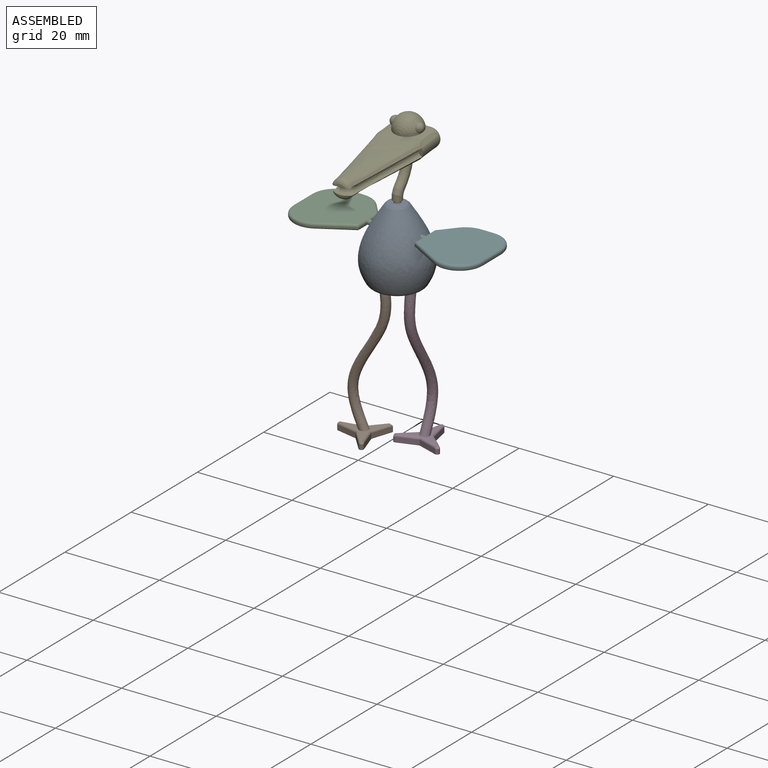
[diagram: assembled view]
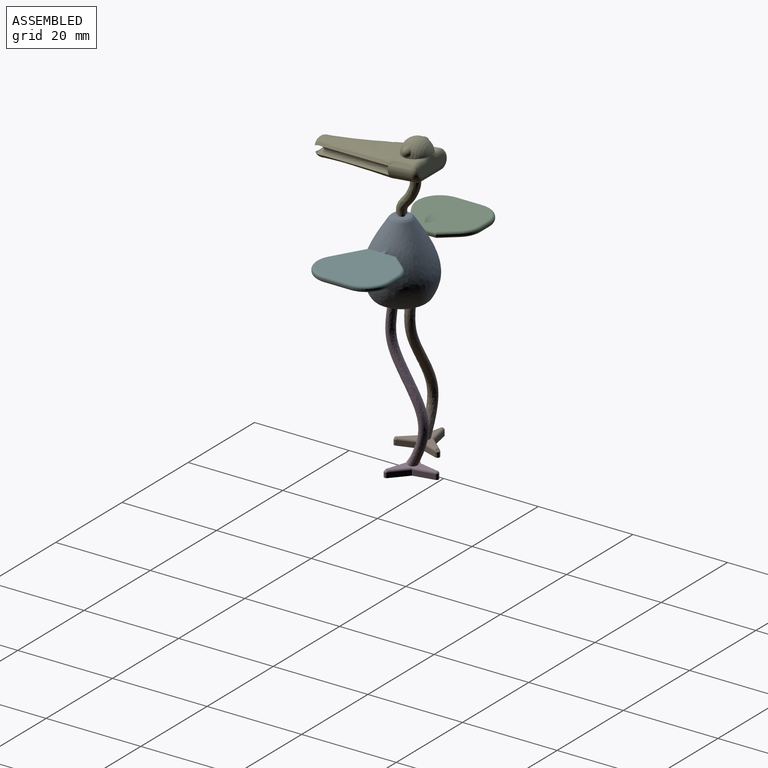
[diagram: assembled view, second angle]
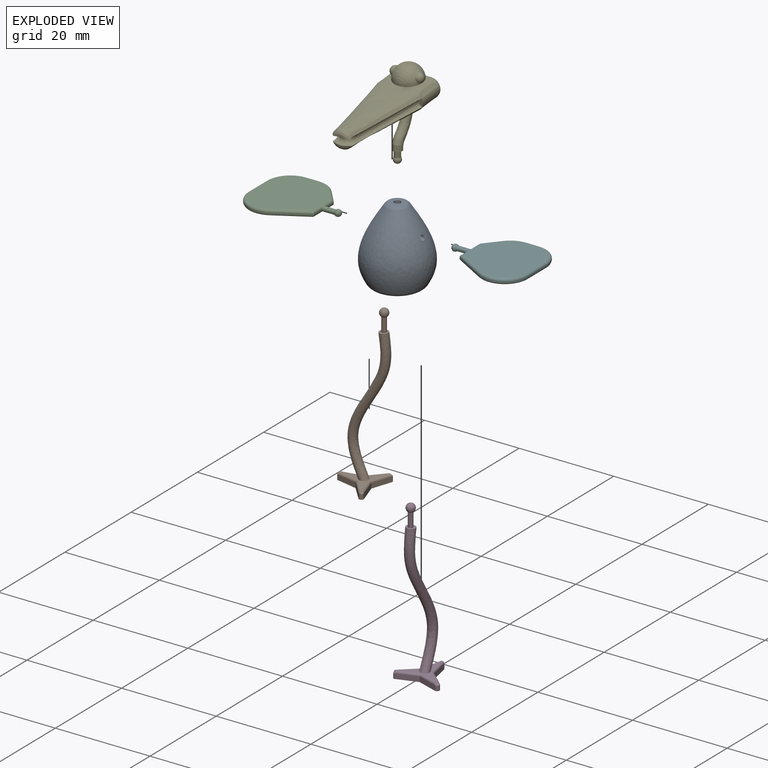
[diagram: exploded view]
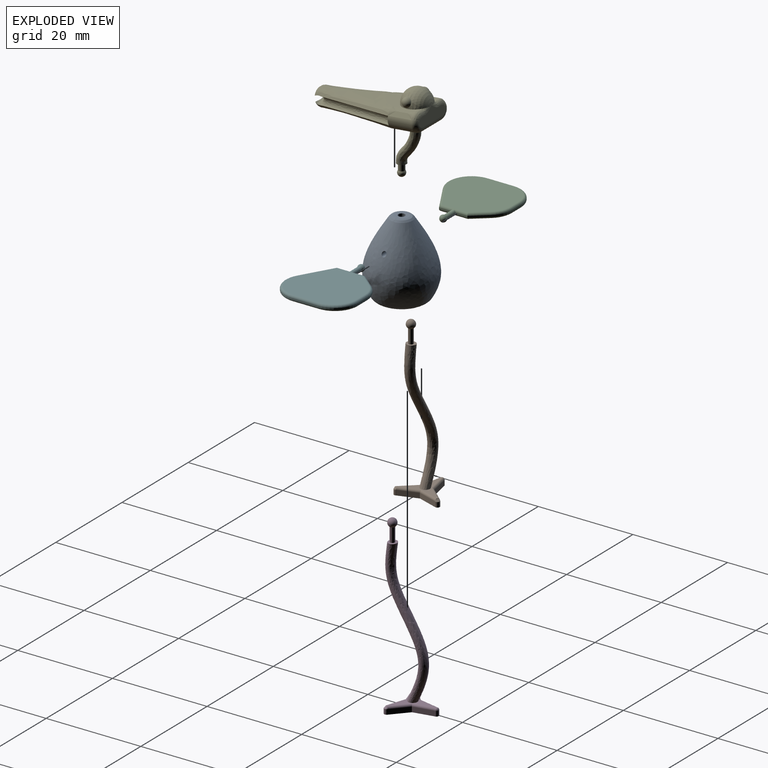
[diagram: exploded view, second angle]
ASSEMBLY  parts=6 mates=5
PART A: 15 faces, bbox 13.7x13.6x16 mm
  f0: bspline ~14.52x13.65mm, area 539mm2, adj f3,f4,f9,f11
  f1: plane 7.7x7.69mm, normal (0,0,-1), area 43.4mm2, adj f4,f5,f7
  f2: plane 2.93x2.93mm, normal (0,0,1), area 5.2mm2, adj f3,f13
  f3: bspline ~4.6x4.6mm, area 11.9mm2, adj f0,f2
  f4: bspline ~11.2x11.2mm, area 64.3mm2, adj f0,f1
  f5: cylinder r=0.7mm len=2.83mm, axis (0,0,1), area 12.4mm2, adj f1,f6
  f6: sphere r=1.2mm, area 16.4mm2, adj f5
  f7: cylinder r=0.7mm len=2.83mm, axis (0,0,1), area 12.4mm2, adj f1,f8
  f8: sphere r=1.2mm, area 16.4mm2, adj f7
  f9: cylinder r=0.5mm len=1.94mm, axis (1,0,0), area 5.3mm2, adj f0,f10
  f10: sphere r=0.88mm, area 9mm2, adj f9
  f11: cylinder r=0.5mm len=1.94mm, axis (-1,0,0), area 5.3mm2, adj f0,f12
  f12: sphere r=0.88mm, area 9mm2, adj f11
  f13: cylinder r=0.7mm len=1.4mm, axis (0,0,-1), area 3.5mm2, adj f2,f14
  f14: sphere r=1mm, area 10.8mm2, adj f13
PART B: 24 faces, bbox 11.4x9.9x35.6 mm
  f0: cylinder r=0.5mm len=1.05mm, axis (0,0,-1), area 1.6mm2, adj f1,f8,f10,f16
  f1: plane 4.21x1.05mm, normal (-0.2,-0.98,0), area 4.5mm2, adj f0,f2,f10,f14
  f2: plane 3.38x3.02mm, normal (-0.75,-0.67,0), area 4.8mm2, adj f1,f3,f10,f12
  f3: cylinder r=0.5mm len=1.05mm, axis (0,0,-1), area 1.4mm2, adj f2,f4,f10,f11
  f4: plane 4.08x1.35mm, normal (0.95,0.31,0), area 4.5mm2, adj f3,f5,f10,f13
  f5: plane 4.08x1.35mm, normal (0.95,-0.31,0), area 4.5mm2, adj f4,f6,f10,f15
  f6: cylinder r=0.5mm len=1.05mm, axis (0,0,-1), area 1.6mm2, adj f5,f7,f10,f17
  f7: plane 3.21x2.86mm, normal (-0.75,0.66,0), area 4.5mm2, adj f6,f8,f10,f19
  f8: plane 4.21x1.05mm, normal (-0.2,0.98,0), area 4.5mm2, adj f0,f7,f10,f18
  f9: plane 9.04x7.88mm, normal (0,0,1), area 11.8mm2, adj f11,f12,f13,f14,f15,f16,f17,f18
  f10: plane 9.66x8.5mm, normal (0,0,-1), area 28mm2, adj f0,f1,f2,f3,f4,f5,f6,f7
  f11: torus R=0.05mm, axis (0,0,1), area 0.6mm2, adj f3,f9,f12,f13
  f12: cylinder r=0.45mm len=3.79mm, axis (-0.67,0.75,0), area 3.2mm2, adj f2,f9,f11,f14
  f13: cylinder r=0.45mm len=4.43mm, axis (0.31,-0.95,0), area 3.1mm2, adj f4,f9,f11,f15
  f14: cylinder r=0.45mm len=4.52mm, axis (-0.98,0.2,0), area 3.1mm2, adj f1,f9,f12,f16
  f15: cylinder r=0.45mm len=4.43mm, axis (-0.31,-0.95,0), area 3.1mm2, adj f5,f9,f13,f17
  f16: torus R=0.05mm, axis (0,0,1), area 0.8mm2, adj f0,f9,f14,f18
  f17: torus R=0.05mm, axis (0,0,1), area 0.8mm2, adj f6,f9,f15,f19
  f18: cylinder r=0.45mm len=4.52mm, axis (0.98,0.2,0), area 3.1mm2, adj f8,f9,f16,f19
  f19: cylinder r=0.45mm len=3.68mm, axis (0.66,0.75,0), area 3.1mm2, adj f7,f9,f17,f18
  f20: bspline ~30.28x9mm, area 187.4mm2, adj f9,f21
  f21: plane 2x1.83mm, normal (0,0,1), area 2.1mm2, adj f20,f22
  f22: cylinder r=0.5mm len=2.95mm, axis (0,0,-1), area 9.3mm2, adj f21,f23
  f23: sphere r=0.9mm, area 9.3mm2, adj f22
PART C: 29 faces, bbox 18.3x16.4x1.4 mm
  f0: cylinder r=0.5mm len=2.71mm, axis (-1,0,0), area 8.1mm2, adj f1,f2,f3,f11,f28
  f1: plane 2.51x0.2mm, normal (1,0,0), area 0.5mm2, adj f0,f2,f3,f10
  f2: cylinder r=0.5mm len=6mm, axis (0,1,0), area 4.3mm2, adj f0,f1,f11,f13,f17,f20
  f3: cylinder r=0.5mm len=6mm, axis (0,-1,0), area 4.3mm2, adj f0,f1,f11,f12,f24,f27
  f4: plane 3.21x2.7mm, normal (0.77,0.64,0), area 0.8mm2, adj f5,f11,f17,f24
  f5: cylinder r=5mm len=3.83mm, axis (0,0,-1), area 0.9mm2, adj f4,f6,f15,f22
  f6: plane 2.67x0.2mm, normal (0,1,0), area 0.5mm2, adj f5,f7,f14,f21
  f7: cylinder r=5mm len=5mm, axis (0,0,-1), area 1.6mm2, adj f6,f8,f16,f23
  f8: plane 5.54x0.2mm, normal (-1,0,0), area 1.1mm2, adj f7,f9,f18,f25
  f9: cylinder r=5mm len=7.5mm, axis (0,0,-1), area 2.1mm2, adj f8,f10,f19,f26
  f10: plane 6.7x3.87mm, normal (0.5,-0.87,0), area 1.5mm2, adj f1,f9,f20,f27
  f11: plane 2.51x0.2mm, normal (1,0,0), area 0.5mm2, adj f0,f2,f3,f4
  f12: plane 14.54x13.2mm, normal (0,0,1), area 157mm2, adj f3,f21,f22,f23,f24,f25,f26,f27
  f13: plane 14.54x13.2mm, normal (0,0,-1), area 157mm2, adj f2,f14,f15,f16,f17,f18,f19,f20
  f14: cylinder r=0.5mm len=2.67mm, axis (-1,0,0), area 2.1mm2, adj f6,f13,f15,f16
  f15: torus R=4.5mm, axis (0,0,1), area 3.3mm2, adj f5,f13,f14,f17
  f16: torus R=4.5mm, axis (0,0,1), area 5.9mm2, adj f7,f13,f14,f18
  f17: cylinder r=0.5mm len=3.54mm, axis (-0.64,0.77,0), area 3.2mm2, adj f2,f4,f13,f15
  f18: cylinder r=0.5mm len=5.54mm, axis (0,-1,0), area 4.3mm2, adj f8,f13,f16,f19
  f19: torus R=4.5mm, axis (0,0,1), area 7.9mm2, adj f9,f13,f18,f20
  f20: cylinder r=0.5mm len=6.95mm, axis (0.87,0.5,0), area 6mm2, adj f2,f10,f13,f19
  f21: cylinder r=0.5mm len=2.67mm, axis (1,0,0), area 2.1mm2, adj f6,f12,f22,f23
  f22: torus R=4.5mm, axis (0,0,1), area 3.3mm2, adj f5,f12,f21,f24
  f23: torus R=4.5mm, axis (0,0,1), area 5.9mm2, adj f7,f12,f21,f25
  f24: cylinder r=0.5mm len=3.54mm, axis (0.64,-0.77,0), area 3.2mm2, adj f3,f4,f12,f22
  f25: cylinder r=0.5mm len=5.54mm, axis (0,1,0), area 4.3mm2, adj f8,f12,f23,f26
  f26: torus R=4.5mm, axis (0,0,1), area 7.9mm2, adj f9,f12,f25,f27
  f27: cylinder r=0.5mm len=6.95mm, axis (-0.87,-0.5,0), area 6mm2, adj f3,f10,f12,f26
  f28: sphere r=0.7mm, area 5.2mm2, adj f0
PART D: same geometry as B
PART E: 43 faces, bbox 10.8x24.6x18 mm
  f0: cylinder r=0.65mm len=1.46mm, axis (0,0.1,-1), area 5.4mm2, adj f40,f42
  f1: sphere r=3mm, area 50.2mm2, adj f2,f3,f22,f23,f26,f27,f28,f31
  f2: plane 2x0.76mm, normal (0,0,-1), area 0.5mm2, adj f1,f21,f29
  f3: plane 2x0.76mm, normal (0,0,-1), area 0.5mm2, adj f1,f24,f33
  f4: plane 1.52x0.25mm, normal (0,-1,0), area 0.2mm2, adj f9,f11
  f5: bspline ~17.15x9.6mm, area 126.3mm2, adj f9,f10,f11,f12,f16,f17,f18,f19
  f6: bspline ~4.12x1.78mm, area 5.8mm2, adj f7,f8,f11
  f7: plane 1.52x0.25mm, normal (0,-1,0), area 0.2mm2, adj f6,f11
  f8: bspline ~17.15x9.6mm, area 126.2mm2, adj f6,f10,f11,f12,f21,f22,f23,f24
  f9: bspline ~3.95x1.64mm, area 5.8mm2, adj f4,f5,f11
  f10: bspline ~15.55x4.33mm, area 36mm2, adj f5,f8,f11,f13
  f11: bspline ~6.21x2.98mm, area 19.6mm2, adj f4,f5,f6,f7,f8,f9,f10,f12
  f12: bspline ~16.12x4.24mm, area 35.9mm2, adj f5,f8,f11,f14
  f13: plane 1.91x1.05mm, normal (0,-1,0), area 1.1mm2, adj f10,f15
  f14: plane 2.21x1.35mm, normal (0,-1,0), area 1.2mm2, adj f12,f20
  f15: cylinder r=2mm len=5mm, axis (0,-1,0), area 9.1mm2, adj f13,f16,f24,f37
  f16: extruded ~5x1.8mm, area 11.2mm2, adj f5,f15,f17,f39
  f17: plane 5.28x3.28mm, normal (0,0,1), area 13.4mm2, adj f5,f16,f18,f38,f41
  f18: plane 5.28x3.28mm, normal (0,0,1), area 13.4mm2, adj f5,f17,f19,f36,f41
  f19: extruded ~5x1.8mm, area 11.2mm2, adj f5,f18,f20,f34
  f20: cylinder r=2mm len=5mm, axis (0,-1,0), area 9.1mm2, adj f14,f19,f21,f32
  f21: extruded ~5x1.8mm, area 11.2mm2, adj f2,f8,f20,f22,f30
  f22: plane 3.01x3.01mm, normal (0,0,-1), area 1.9mm2, adj f1,f8,f21
  f23: plane 3.01x3.01mm, normal (0,0,-1), area 1.9mm2, adj f1,f8,f24
  f24: extruded ~5x1.8mm, area 11.2mm2, adj f3,f8,f15,f23,f35
  f25: plane 8x3mm, normal (0,1,0), area 16.8mm2, adj f28,f29,f30,f31,f32,f33,f34,f35
  f26: sphere r=1mm, area 5.5mm2, adj f1
  f27: sphere r=1mm, area 5.5mm2, adj f1
  f28: bspline ~2.56x1.17mm, area 1.1mm2, adj f1,f25,f29
  f29: cylinder r=1mm len=1mm, axis (1,0,0), area 1.2mm2, adj f2,f25,f28,f30
  f30: bspline ~2.76x2.19mm, area 2.9mm2, adj f21,f25,f29,f32
  f31: bspline ~2.24x1mm, area 1.1mm2, adj f1,f25,f33
  f32: torus R=1mm, axis (0,1,0), area 2.3mm2, adj f20,f25,f30,f34
  f33: cylinder r=1mm len=1mm, axis (1,0,0), area 1.2mm2, adj f3,f25,f31,f35
  f34: bspline ~2.74x2.15mm, area 2.9mm2, adj f19,f25,f32,f36
  f35: bspline ~2.74x2.15mm, area 2.9mm2, adj f24,f25,f33,f37
  f36: cylinder r=1mm len=3mm, axis (-1,0,0), area 4.7mm2, adj f18,f25,f34,f38
  f37: torus R=1mm, axis (0,1,0), area 2.3mm2, adj f15,f25,f35,f39
  f38: cylinder r=1mm len=3mm, axis (-1,0,0), area 4.7mm2, adj f17,f25,f36,f39
  f39: bspline ~2.56x1.72mm, area 2.9mm2, adj f16,f25,f37,f38
  f40: plane 2.28x2.27mm, normal (0,-0.1,1), area 1.8mm2, adj f0,f41
  f41: bspline ~8.15x7.63mm, area 56.9mm2, adj f17,f18,f40
  f42: sphere r=0.8mm, area 6.3mm2, adj f0
PART F: same geometry as C
PLACE A t=(-0.47,6.82,2.63)mm
PLACE B t=(-7.57,6.82,-28.11)mm
PLACE C t=(-6.51,6.82,13.18)mm
PLACE D rot(axis=(0,0,-1),90deg) t=(2.33,11.12,-28.2)mm
PLACE E rot(axis=(0,-1,-0.05),180deg) t=(-0.47,7.36,29.15)mm
PLACE F rot(axis=(0,1,0),180deg) t=(5.27,6.82,13.18)mm
MATE fastened F.f0 <-> A.f9  axis (1,0,0) through (4.13,6.82,13.18)mm
MATE fastened C.f0 <-> A.f9  axis (-1,0,0) through (-5.36,6.82,13.18)mm
MATE fastened E.f0 <-> A.f13  axis (0,0,1) through (-0.47,6.82,18.43)mm
MATE fastened B.f22 <-> A.f5  axis (0,0,-1) through (-3.27,6.82,4.04)mm
MATE fastened D.f22 <-> A.f7  axis (0,0,-1) through (2.33,6.82,3.95)mm
